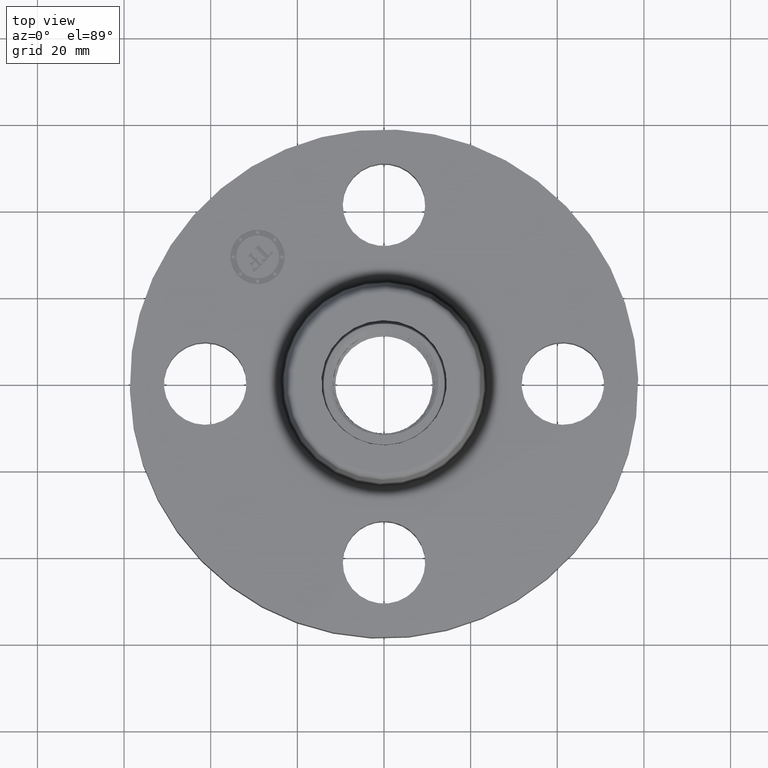
[diagram: clean part render]
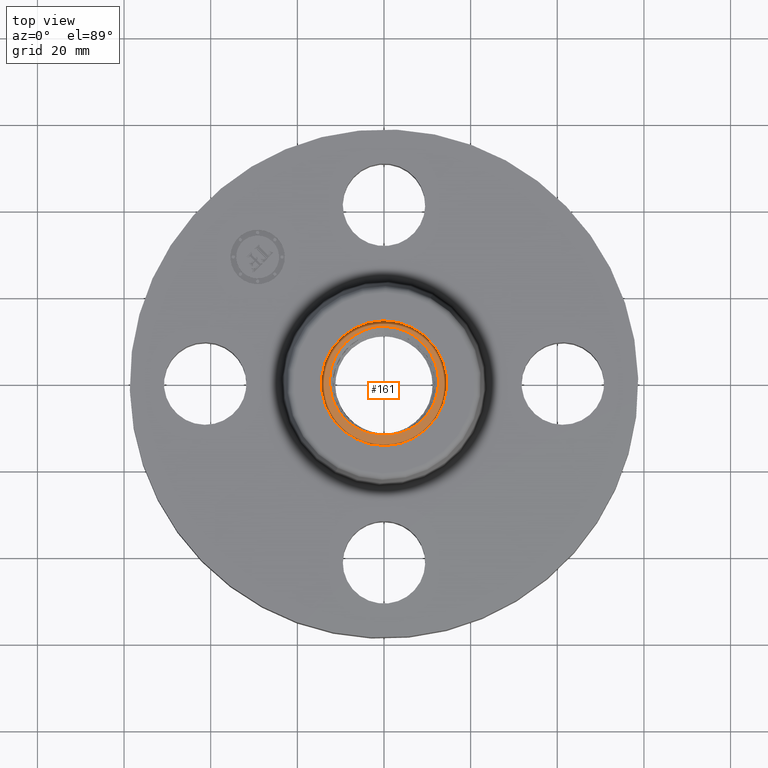
[diagram: same view with one face highlighted and labeled with its STEP entity id]
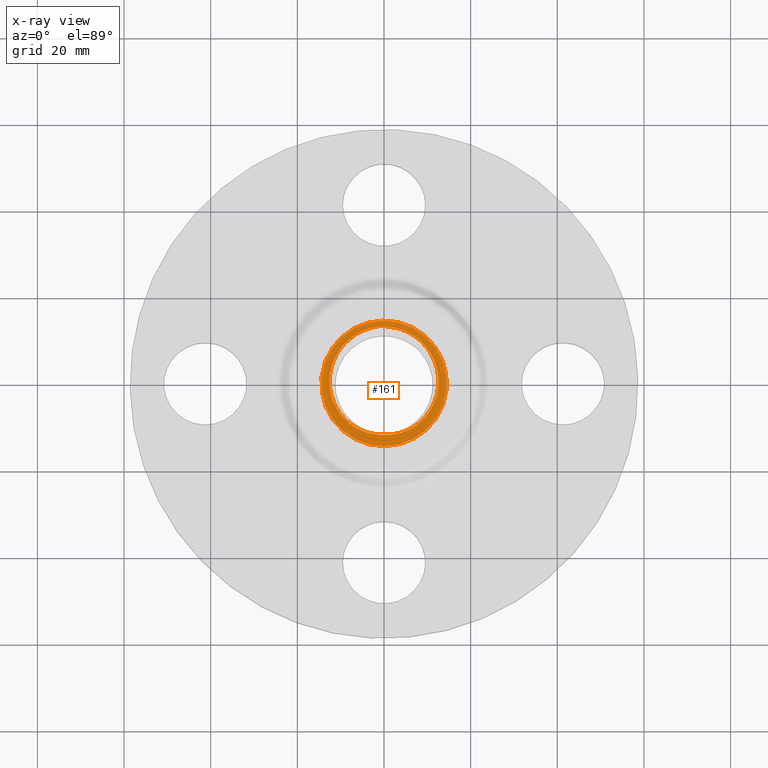
[diagram: x-ray of the same camera — body ghosted, the highlighted face saturated]
A machine part, top view. The second image highlights one B-rep face of the part: STEP entity #161.
The next image is the same camera in x-ray: the body ghosted, the highlighted face saturated — about 0% of this face is hidden behind the body in this view.
In plain terms, the highlighted planar face has unit normal (0, 0, 1).
Its self-contained STEP definition (entity closure, byte-faithful):
#38=AXIS2_PLACEMENT_3D('Plane Axis2P3D',#35,#36,#37) ;
#42=AXIS2_PLACEMENT_3D('Circle Axis2P3D',#40,#41,$) ;
#51=AXIS2_PLACEMENT_3D('Circle Axis2P3D',#49,#50,$) ;
#60=AXIS2_PLACEMENT_3D('Circle Axis2P3D',#58,#59,$) ;
#35=CARTESIAN_POINT('Axis2P3D Location',(1.92322098754E-017,-2.08057543197E-016,0.620000000002)) ;
#40=CARTESIAN_POINT('Axis2P3D Location',(0.,0.,0.620000000002)) ;
#44=CARTESIAN_POINT('Vertex',(-0.273272557005,0.50022206028,0.620000000002)) ;
#46=CARTESIAN_POINT('Vertex',(0.273272557005,-0.50022206028,0.620000000002)) ;
#49=CARTESIAN_POINT('Axis2P3D Location',(0.,0.,0.620000000002)) ;
#58=CARTESIAN_POINT('Axis2P3D Location',(8.91675185132E-017,1.92322098754E-017,0.620000000002)) ;
#62=CARTESIAN_POINT('Vertex',(-0.0688399772456,-0.462087090107,0.620000368611)) ;
#64=CARTESIAN_POINT('Vertex',(-0.000898172766457,-0.467185819762,0.619999532643)) ;
#68=CARTESIAN_POINT('Control Point',(-0.246874648732,0.451904577731,0.620000000002)) ;
#69=CARTESIAN_POINT('Control Point',(-0.286886767717,0.428073839622,0.620000000002)) ;
#70=CARTESIAN_POINT('Control Point',(-0.324120649007,0.399765658137,0.620000000002)) ;
#71=CARTESIAN_POINT('Control Point',(-0.35789264945,0.367403260326,0.620000000002)) ;
#72=CARTESIAN_POINT('Control Point',(-0.417367388515,0.295716893395,0.620000000002)) ;
#73=CARTESIAN_POINT('Control Point',(-0.45898200929,0.21284634283,0.620000000002)) ;
#74=CARTESIAN_POINT('Control Point',(-0.474905064108,0.169278483591,0.620000000002)) ;
#75=CARTESIAN_POINT('Control Point',(-0.494276146998,0.0884506348227,0.620000000002)) ;
#76=CARTESIAN_POINT('Control Point',(-0.496660780123,0.00587607091292,0.620000000002)) ;
#77=CARTESIAN_POINT('Control Point',(-0.494322376802,-0.0307556796377,0.620000000002)) ;
#78=CARTESIAN_POINT('Control Point',(-0.481489087207,-0.112076137632,0.620000000002)) ;
#79=CARTESIAN_POINT('Control Point',(-0.452185526975,-0.188866343412,0.620000000002)) ;
#80=CARTESIAN_POINT('Control Point',(-0.431040431241,-0.229332532931,0.620000000002)) ;
#81=CARTESIAN_POINT('Control Point',(-0.379827317825,-0.304424610963,0.620000000002)) ;
#82=CARTESIAN_POINT('Control Point',(-0.31300353598,-0.365360657976,0.620000000002)) ;
#83=CARTESIAN_POINT('Control Point',(-0.276223287661,-0.391695191987,0.620000000002)) ;
#84=CARTESIAN_POINT('Control Point',(-0.213555470467,-0.426195273802,0.620000000002)) ;
#85=CARTESIAN_POINT('Control Point',(-0.146132857406,-0.448271853295,0.620000000002)) ;
#86=CARTESIAN_POINT('Control Point',(-0.120639780176,-0.454688684791,0.620000000002)) ;
#87=CARTESIAN_POINT('Control Point',(-0.0948185185534,-0.459298427818,0.620000000002)) ;
#88=CARTESIAN_POINT('Control Point',(-0.068839883251,-0.462086548602,0.620000000002)) ;
#89=CARTESIAN_POINT('Vertex',(-0.246874648732,0.451904577731,0.620000000002)) ;
#93=CARTESIAN_POINT('Control Point',(-0.0410005717004,0.521404256916,0.620000000002)) ;
#94=CARTESIAN_POINT('Control Point',(-0.084654284097,0.516358277807,0.620000000002)) ;
#95=CARTESIAN_POINT('Control Point',(-0.127698180656,0.506733065856,0.620000000002)) ;
#96=CARTESIAN_POINT('Control Point',(-0.169496898176,0.4926119544,0.620000000002)) ;
#97=CARTESIAN_POINT('Control Point',(-0.209404054838,0.474221614025,0.620000000002)) ;
#98=CARTESIAN_POINT('Control Point',(-0.246874648732,0.451904577731,0.620000000002)) ;
#99=CARTESIAN_POINT('Vertex',(-0.0410005717004,0.521404256916,0.620000000002)) ;
#103=CARTESIAN_POINT('Control Point',(-0.0410005717004,0.521404256916,0.620000000002)) ;
#104=CARTESIAN_POINT('Control Point',(-0.0328023975072,0.521776410709,0.620000000002)) ;
#105=CARTESIAN_POINT('Control Point',(-0.0245994293089,0.521987546694,0.620000000002)) ;
#106=CARTESIAN_POINT('Control Point',(-0.0163903223476,0.522037517072,0.620000000002)) ;
#107=CARTESIAN_POINT('Control Point',(-0.00819040342478,0.52192628854,0.620000000002)) ;
#108=CARTESIAN_POINT('Control Point',(1.69015948561E-006,0.521654154517,0.620000000002)) ;
#109=CARTESIAN_POINT('Vertex',(1.69015948561E-006,0.521654154517,0.620000000002)) ;
#113=CARTESIAN_POINT('Control Point',(1.69015948567E-006,0.521654154517,0.620000000002)) ;
#114=CARTESIAN_POINT('Control Point',(0.0468492627821,0.520097920099,0.620000000002)) ;
#115=CARTESIAN_POINT('Control Point',(0.0934409500559,0.513279598293,0.620000000002)) ;
#116=CARTESIAN_POINT('Control Point',(0.138979572972,0.501235789418,0.620000000002)) ;
#117=CARTESIAN_POINT('Control Point',(0.226384877974,0.467142182077,0.620000000002)) ;
#118=CARTESIAN_POINT('Control Point',(0.303661749454,0.414564692632,0.620000000002)) ;
#119=CARTESIAN_POINT('Control Point',(0.339076616952,0.384031915743,0.620000000002)) ;
#120=CARTESIAN_POINT('Control Point',(0.402203718597,0.315590739584,0.620000000002)) ;
#121=CARTESIAN_POINT('Control Point',(0.44812459601,0.234963256872,0.620000000002)) ;
#122=CARTESIAN_POINT('Control Point',(0.466316104716,0.192262733266,0.620000000002)) ;
#123=CARTESIAN_POINT('Control Point',(0.492522393905,0.103625936045,0.620000000002)) ;
#124=CARTESIAN_POINT('Control Point',(0.497890258622,0.0117178831244,0.620000000002)) ;
#125=CARTESIAN_POINT('Control Point',(0.495238541354,-0.0342394964355,0.620000000002)) ;
#126=CARTESIAN_POINT('Control Point',(0.479396381637,-0.124523848419,0.620000000002)) ;
#127=CARTESIAN_POINT('Control Point',(0.443463954852,-0.208436503723,0.620000000002)) ;
#128=CARTESIAN_POINT('Control Point',(0.420716040417,-0.248034014166,0.620000000002)) ;
#129=CARTESIAN_POINT('Control Point',(0.373273040755,-0.311953343636,0.620000000002)) ;
#130=CARTESIAN_POINT('Control Point',(0.31424260432,-0.36460447887,0.620000000002)) ;
#131=CARTESIAN_POINT('Control Point',(0.2870388221,-0.384861128169,0.620000000002)) ;
#132=CARTESIAN_POINT('Control Point',(0.258233659935,-0.402586688543,0.620000000002)) ;
#133=CARTESIAN_POINT('Control Point',(0.228147865563,-0.417627779028,0.620000000002)) ;
#134=CARTESIAN_POINT('Vertex',(0.228147865563,-0.417627779028,0.620000000002)) ;
#138=CARTESIAN_POINT('Control Point',(0.228147865563,-0.417627779028,0.620000000002)) ;
#139=CARTESIAN_POINT('Control Point',(0.185747203433,-0.438825563702,0.620000000002)) ;
#140=CARTESIAN_POINT('Control Point',(0.140802900056,-0.454691472935,0.620000000002)) ;
#141=CARTESIAN_POINT('Control Point',(0.0941832586103,-0.464804835643,0.620000000002)) ;
#142=CARTESIAN_POINT('Control Point',(0.0469240989248,-0.468959844724,0.620000000002)) ;
#143=CARTESIAN_POINT('Control Point',(-3.33307480427E-006,-0.467219173195,0.620000000002)) ;
#144=CARTESIAN_POINT('Vertex',(-3.33402644747E-006,-0.467187363299,0.620021298331)) ;
#147=CARTESIAN_POINT('Line Origine',(-0.000450754974729,-0.467185893109,0.620000000002)) ;
#36=DIRECTION('Axis2P3D Direction',(0.,0.,0.0393700787402)) ;
#37=DIRECTION('Axis2P3D XDirection',(0.0393700787402,0.,0.)) ;
#41=DIRECTION('Axis2P3D Direction',(0.,0.,0.0393700787402)) ;
#50=DIRECTION('Axis2P3D Direction',(0.,0.,0.0393700787402)) ;
#59=DIRECTION('Axis2P3D Direction',(0.,0.,0.0393700787402)) ;
#148=DIRECTION('Vector Direction',(-0.0393700201687,6.79111415241E-005,0.)) ;
#149=VECTOR('Line Direction',#148,0.0393700787402) ;
#55=ORIENTED_EDGE('',*,*,#48,.T.) ;
#56=ORIENTED_EDGE('',*,*,#53,.T.) ;
#153=ORIENTED_EDGE('',*,*,#66,.F.) ;
#154=ORIENTED_EDGE('',*,*,#91,.F.) ;
#155=ORIENTED_EDGE('',*,*,#101,.F.) ;
#156=ORIENTED_EDGE('',*,*,#111,.T.) ;
#157=ORIENTED_EDGE('',*,*,#136,.T.) ;
#158=ORIENTED_EDGE('',*,*,#146,.T.) ;
#159=ORIENTED_EDGE('',*,*,#151,.F.) ;
#160=FACE_BOUND('',#152,.T.) ;
#161=ADVANCED_FACE('PartBody',(#57,#160),#39,.T.) ;
#67=B_SPLINE_CURVE_WITH_KNOTS('',5,(#68,#69,#70,#71,#72,#73,#74,#75,#76,#77,#78,#79,#80,#81,#82,#83,#84,#85,#86,#87,#88),.UNSPECIFIED.,.F.,.U.,(6,3,3,3,3,3,6),(0.,8.21005080816,16.4243320016,22.9948642847,31.2076143114,39.4271456145,44.2701777262),.UNSPECIFIED.) ;
#92=B_SPLINE_CURVE_WITH_KNOTS('',5,(#93,#94,#95,#96,#97,#98),.UNSPECIFIED.,.F.,.U.,(6,6),(0.,7.68855755828),.UNSPECIFIED.) ;
#102=B_SPLINE_CURVE_WITH_KNOTS('',5,(#103,#104,#105,#106,#107,#108),.UNSPECIFIED.,.F.,.U.,(6,6),(0.,1.43579398909),.UNSPECIFIED.) ;
#112=B_SPLINE_CURVE_WITH_KNOTS('',5,(#113,#114,#115,#116,#117,#118,#119,#120,#121,#122,#123,#124,#125,#126,#127,#128,#129,#130,#131,#132,#133),.UNSPECIFIED.,.F.,.U.,(6,3,3,3,3,3,6),(0.,8.21077817056,16.4225165321,24.6291587592,32.832707879,41.038536984,47.1994543616),.UNSPECIFIED.) ;
#137=B_SPLINE_CURVE_WITH_KNOTS('',5,(#138,#139,#140,#141,#142,#143),.UNSPECIFIED.,.F.,.U.,(6,6),(0.,8.68273486705),.UNSPECIFIED.) ;
#43=CIRCLE('generated circle',#42,0.570000000002) ;
#52=CIRCLE('generated circle',#51,0.570000000002) ;
#61=CIRCLE('generated circle',#60,0.467186697742) ;
#48=EDGE_CURVE('',#45,#47,#43,.T.) ;
#53=EDGE_CURVE('',#47,#45,#52,.T.) ;
#66=EDGE_CURVE('',#63,#65,#61,.T.) ;
#91=EDGE_CURVE('',#90,#63,#67,.T.) ;
#101=EDGE_CURVE('',#100,#90,#92,.T.) ;
#111=EDGE_CURVE('',#100,#110,#102,.T.) ;
#136=EDGE_CURVE('',#110,#135,#112,.T.) ;
#146=EDGE_CURVE('',#135,#145,#137,.T.) ;
#151=EDGE_CURVE('',#65,#145,#150,.F.) ;
#54=EDGE_LOOP('',(#55,#56)) ;
#152=EDGE_LOOP('',(#153,#154,#155,#156,#157,#158,#159)) ;
#57=FACE_OUTER_BOUND('',#54,.T.) ;
#150=LINE('Line',#147,#149) ;
#39=PLANE('',#38) ;
#45=VERTEX_POINT('',#44) ;
#47=VERTEX_POINT('',#46) ;
#63=VERTEX_POINT('',#62) ;
#65=VERTEX_POINT('',#64) ;
#90=VERTEX_POINT('',#89) ;
#100=VERTEX_POINT('',#99) ;
#110=VERTEX_POINT('',#109) ;
#135=VERTEX_POINT('',#134) ;
#145=VERTEX_POINT('',#144) ;